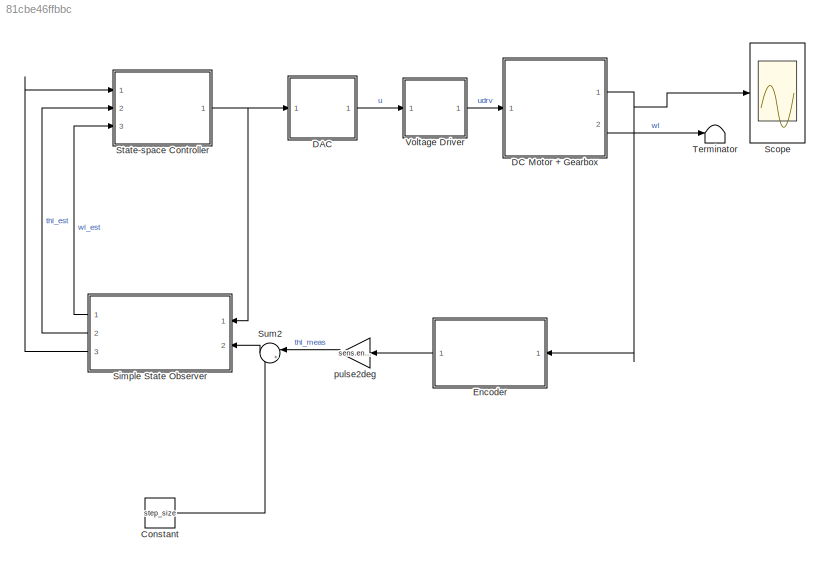
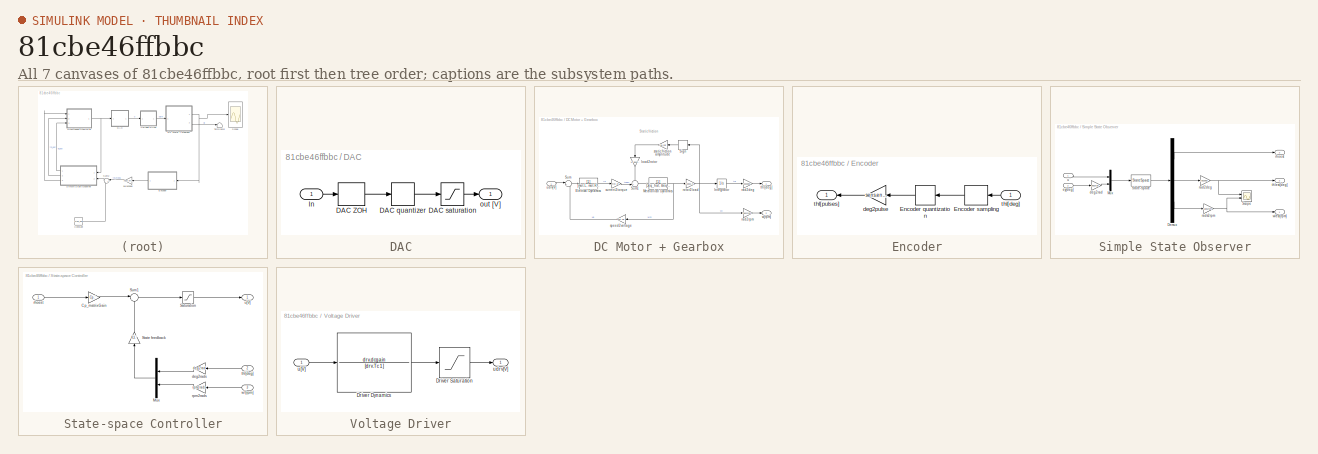
[diagram: thumbnail index - all 7 canvases of the model, root first then tree order]
MODEL slx_81cbe46ffbbc
KIND model
CONFIG AbsTol = auto
CONFIG EnableMultiTasking = off
CONFIG FixedStep = auto
CONFIG MaxStep = auto
CONFIG MinStep = auto
CONFIG RelTol = 1e-3
CONFIG SampleTimeConstraint = Unconstrained
CONFIG SolverName = ode45
CONFIG StartTime = 0.0
CONFIG StopTime = 5
BLOCK [Constant] Constant
  Value = step_size
BLOCK [SubSystem] DAC
  Ports = [1, 1]
  RequestExecContextInheritance = off
BLOCK [ZeroOrderHold] DAC/DAC ZOH
  SampleTime = 0.001
BLOCK [Quantizer] DAC/DAC quantizer
  QuantizationInterval = daq.dac.q
BLOCK [Saturate] DAC/DAC saturation
  LowerLimit = -daq.dac.fs
  UpperLimit = daq.dac.fs
BLOCK [Inport] DAC/In
BLOCK [Outport] DAC/out [V]
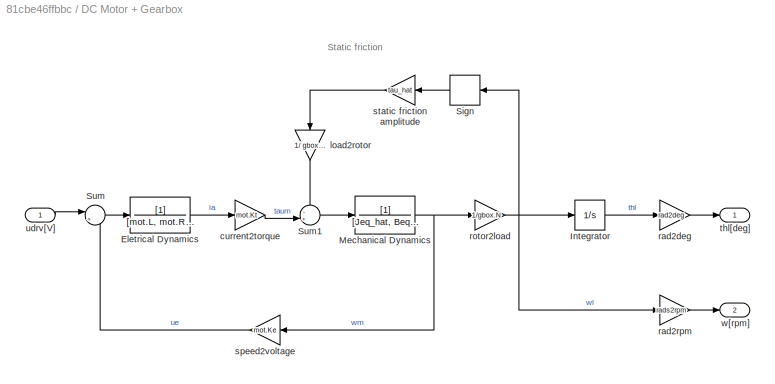
BLOCK [SubSystem] DC Motor + Gearbox
  Ports = [1, 2]
  RequestExecContextInheritance = off
BLOCK [TransferFcn] DC Motor + Gearbox/Eletrical Dynamics
  Denominator = [mot.L, mot.R+sens.curr.Rs]
BLOCK [Integrator] DC Motor + Gearbox/Integrator
  Ports = [1, 1]
BLOCK [TransferFcn] DC Motor + Gearbox/Mechanical Dynamics
  Denominator = [Jeq_hat, Beq_hat]
BLOCK [Signum] DC Motor + Gearbox/Sign
  ZeroCross = off
BLOCK [Sum] DC Motor + Gearbox/Sum
  Inputs = |+-
  Ports = [2, 1]
BLOCK [Sum] DC Motor + Gearbox/Sum1
  Inputs = -+|
  Ports = [2, 1]
BLOCK [Gain] DC Motor + Gearbox/current2torque
  Gain = mot.Kt
BLOCK [Gain] DC Motor + Gearbox/load2rotor
  Gain = 1/ gbox.N
  NameLocation = left
BLOCK [Gain] DC Motor + Gearbox/rad2deg
  Gain = rad2deg
BLOCK [Gain] DC Motor + Gearbox/rad2rpm 
  Gain = rads2rpm
BLOCK [Gain] DC Motor + Gearbox/rotor2load
  Gain = 1/gbox.N
BLOCK [Gain] DC Motor + Gearbox/speed2voltage
  Gain = mot.Ke
BLOCK [Gain] DC Motor + Gearbox/static friction amplitude
  Gain = tau_hat
BLOCK [Outport] DC Motor + Gearbox/thl[deg]
  VectorParamsAs1DForOutWhenUnconnected = off
BLOCK [Inport] DC Motor + Gearbox/udrv[V]
BLOCK [Outport] DC Motor + Gearbox/w[rpm]
  Port = 2
  VectorParamsAs1DForOutWhenUnconnected = off
BLOCK [SubSystem] Encoder
  Ports = [1, 1]
  RequestExecContextInheritance = off
BLOCK [Quantizer] Encoder/Encoder quantization
  QuantizationInterval = sens.enc.pulse2deg
BLOCK [ZeroOrderHold] Encoder/Encoder sampling
  SampleTime = -1
BLOCK [Gain] Encoder/deg2pulse
  Gain = sens.enc.deg2pulse
BLOCK [Inport] Encoder/thl[deg]
BLOCK [Outport] Encoder/thl[pulses]
BLOCK [Scope] Scope
  Floating = off
  NumInputPorts = 1
  Ports = [1]
  ScopeSpecificationString = Simulink.scopes.TimeScopeBlockCfg('CurrentConfiguration', extmgr.ConfigurationSet(extmgr.Configuration('Core','General UI',true),extmgr.Configuration('Core','Source UI',true),extmgr.Configuration('Sources','WiredSimulink',true,'DataLogging',true,'DataLoggingVariableName','MotorData','DataLoggingSaveFormat','StructureWithTime'),extmgr.Configuration('Visuals','Time Domain',true,'SerializedDisplays',...<+2097ch>
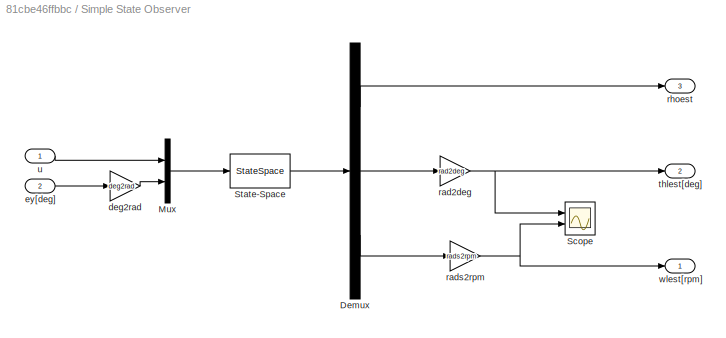
BLOCK [SubSystem] Simple State Observer
  Ports = [2, 3]
  RequestExecContextInheritance = off
BLOCK [Demux] Simple State Observer/Demux
  Outputs = 3
  Ports = [1, 3]
BLOCK [Mux] Simple State Observer/Mux
  DisplayOption = bar
  Inputs = 2
  Ports = [2, 1]
BLOCK [Scope] Simple State Observer/Scope
  Floating = off
  NumInputPorts = 2
  Ports = [2]
  ScopeSpecificationString = Simulink.scopes.TimeScopeBlockCfg('CurrentConfiguration', extmgr.ConfigurationSet(extmgr.Configuration('Core','General UI',true),extmgr.Configuration('Core','Source UI',true),extmgr.Configuration('Sources','WiredSimulink',true,'DataLoggingVariableName','ScopeData1'),extmgr.Configuration('Visuals','Time Domain',true,'SerializedDisplays',{struct('MinYLimReal','-1038.96463','MaxYLimReal','9350.68166'...<+2090ch>
BLOCK [StateSpace] Simple State Observer/State-Space
  A = Aest
  B = Best
  C = Cest
  D = Dest
  InitialCondition = 0
  Ports = [1, 1]
BLOCK [Gain] Simple State Observer/deg2rad
  Gain = deg2rad
BLOCK [Inport] Simple State Observer/ey[deg]
  Port = 2
BLOCK [Gain] Simple State Observer/rad2deg
  Gain = rad2deg
BLOCK [Gain] Simple State Observer/rads2rpm
  Gain = rads2rpm
BLOCK [Outport] Simple State Observer/rhoest
  Port = 3
BLOCK [Outport] Simple State Observer/thlest[deg]
  Port = 2
BLOCK [Inport] Simple State Observer/u
BLOCK [Outport] Simple State Observer/wlest[rpm]
BLOCK [SubSystem] State-space Controller
  Ports = [3, 1]
  RequestExecContextInheritance = off
BLOCK [Gain] State-space Controller/Cp_matrixGain
  Gain = Cp.'
  Multiplication = Matrix(u*K)
BLOCK [Mux] State-space Controller/Mux
  DisplayOption = bar
  Inputs = 2
  Ports = [2, 1]
BLOCK [Saturate] State-space Controller/Saturation
  LowerLimit = -10
  UpperLimit = 10
BLOCK [Gain] State-space Controller/State feedback
  Gain = K3.'
  Multiplication = Matrix(u*K)
  NameLocation = right
BLOCK [Sum] State-space Controller/Sum1
  Inputs = |--
  Ports = [2, 1]
BLOCK [Gain] State-space Controller/deg2rads
  Gain = deg2rad
  NameLocation = top
BLOCK [Inport] State-space Controller/rhoest
BLOCK [Gain] State-space Controller/rpm2rads
  Gain = rpm2rads
BLOCK [Inport] State-space Controller/thl[deg]
  Port = 2
BLOCK [Outport] State-space Controller/u[V]
BLOCK [Inport] State-space Controller/wl[rpm]
  Port = 3
BLOCK [Sum] Sum2
  Inputs = |+-
  Ports = [2, 1]
BLOCK [Terminator] Terminator
BLOCK [SubSystem] Voltage Driver
  Ports = [1, 1]
  RequestExecContextInheritance = off
BLOCK [TransferFcn] Voltage Driver/Driver Dynamics
  Denominator = [drv.Tc 1]
  Numerator = drv.dcgain
BLOCK [Saturate] Voltage Driver/Driver Saturation
  LowerLimit = -12
  UpperLimit = 12
BLOCK [Inport] Voltage Driver/u[V]
BLOCK [Outport] Voltage Driver/udrv[V]
BLOCK [Gain] pulse2deg
  Gain = sens.enc.pulse2deg
ANNOTATION DC Motor + Gearbox: Static friction
LINE Constant:1 -> Sum2:2
LINE DAC/DAC ZOH:1 -> DAC/DAC quantizer:1
LINE DAC/DAC quantizer:1 -> DAC/DAC saturation:1
LINE DAC/DAC saturation:1 -> DAC/out [V]:1
LINE DAC/In:1 -> DAC/DAC ZOH:1
LINE DAC:1 -> Voltage Driver:1
LINE DC Motor + Gearbox/Eletrical Dynamics:1 -> DC Motor + Gearbox/current2torque:1
LINE DC Motor + Gearbox/Integrator:1 -> DC Motor + Gearbox/rad2deg:1
NET DC Motor + Gearbox/Mechanical Dynamics:1 -> DC Motor + Gearbox/rotor2load:1, DC Motor + Gearbox/speed2voltage:1
LINE DC Motor + Gearbox/Sign:1 -> DC Motor + Gearbox/static friction amplitude:1
LINE DC Motor + Gearbox/Sum1:1 -> DC Motor + Gearbox/Mechanical Dynamics:1
LINE DC Motor + Gearbox/Sum:1 -> DC Motor + Gearbox/Eletrical Dynamics:1
LINE DC Motor + Gearbox/current2torque:1 -> DC Motor + Gearbox/Sum1:2
LINE DC Motor + Gearbox/load2rotor:1 -> DC Motor + Gearbox/Sum1:1
LINE DC Motor + Gearbox/rad2deg:1 -> DC Motor + Gearbox/thl[deg]:1
LINE DC Motor + Gearbox/rad2rpm :1 -> DC Motor + Gearbox/w[rpm]:1
NET DC Motor + Gearbox/rotor2load:1 -> DC Motor + Gearbox/Integrator:1, DC Motor + Gearbox/Sign:1, DC Motor + Gearbox/rad2rpm :1
LINE DC Motor + Gearbox/speed2voltage:1 -> DC Motor + Gearbox/Sum:2
LINE DC Motor + Gearbox/static friction amplitude:1 -> DC Motor + Gearbox/load2rotor:1
LINE DC Motor + Gearbox/udrv[V]:1 -> DC Motor + Gearbox/Sum:1
NET DC Motor + Gearbox:1 -> Encoder:1, Scope:1
LINE DC Motor + Gearbox:2 -> Terminator:1
LINE Encoder/Encoder quantization:1 -> Encoder/deg2pulse:1
LINE Encoder/Encoder sampling:1 -> Encoder/Encoder quantization:1
LINE Encoder/deg2pulse:1 -> Encoder/thl[pulses]:1
LINE Encoder/thl[deg]:1 -> Encoder/Encoder sampling:1
LINE Encoder:1 -> pulse2deg:1
LINE Simple State Observer/Demux:1 -> Simple State Observer/rhoest:1
LINE Simple State Observer/Demux:2 -> Simple State Observer/rad2deg:1
LINE Simple State Observer/Demux:3 -> Simple State Observer/rads2rpm:1
LINE Simple State Observer/Mux:1 -> Simple State Observer/State-Space:1
LINE Simple State Observer/State-Space:1 -> Simple State Observer/Demux:1
LINE Simple State Observer/deg2rad:1 -> Simple State Observer/Mux:2
LINE Simple State Observer/ey[deg]:1 -> Simple State Observer/deg2rad:1
NET Simple State Observer/rad2deg:1 -> Simple State Observer/Scope:1, Simple State Observer/thlest[deg]:1
NET Simple State Observer/rads2rpm:1 -> Simple State Observer/Scope:2, Simple State Observer/wlest[rpm]:1
LINE Simple State Observer/u:1 -> Simple State Observer/Mux:1
LINE Simple State Observer:1 -> State-space Controller:3
LINE Simple State Observer:2 -> State-space Controller:2
LINE Simple State Observer:3 -> State-space Controller:1
LINE State-space Controller/Cp_matrixGain:1 -> State-space Controller/Sum1:1
LINE State-space Controller/Mux:1 -> State-space Controller/State feedback:1
LINE State-space Controller/Saturation:1 -> State-space Controller/u[V]:1
LINE State-space Controller/State feedback:1 -> State-space Controller/Sum1:2
LINE State-space Controller/Sum1:1 -> State-space Controller/Saturation:1
LINE State-space Controller/deg2rads:1 -> State-space Controller/Mux:1
LINE State-space Controller/rhoest:1 -> State-space Controller/Cp_matrixGain:1
LINE State-space Controller/rpm2rads:1 -> State-space Controller/Mux:2
LINE State-space Controller/thl[deg]:1 -> State-space Controller/deg2rads:1
LINE State-space Controller/wl[rpm]:1 -> State-space Controller/rpm2rads:1
NET State-space Controller:1 -> DAC:1, Simple State Observer:1
LINE Sum2:1 -> Simple State Observer:2
LINE Voltage Driver/Driver Dynamics:1 -> Voltage Driver/Driver Saturation:1
LINE Voltage Driver/Driver Saturation:1 -> Voltage Driver/udrv[V]:1
LINE Voltage Driver/u[V]:1 -> Voltage Driver/Driver Dynamics:1
LINE Voltage Driver:1 -> DC Motor + Gearbox:1
LINE pulse2deg:1 -> Sum2:1
note: NET lines group one-source signal fan-out (src -> all destinations, sorted); 1:1 wires keep LINE
